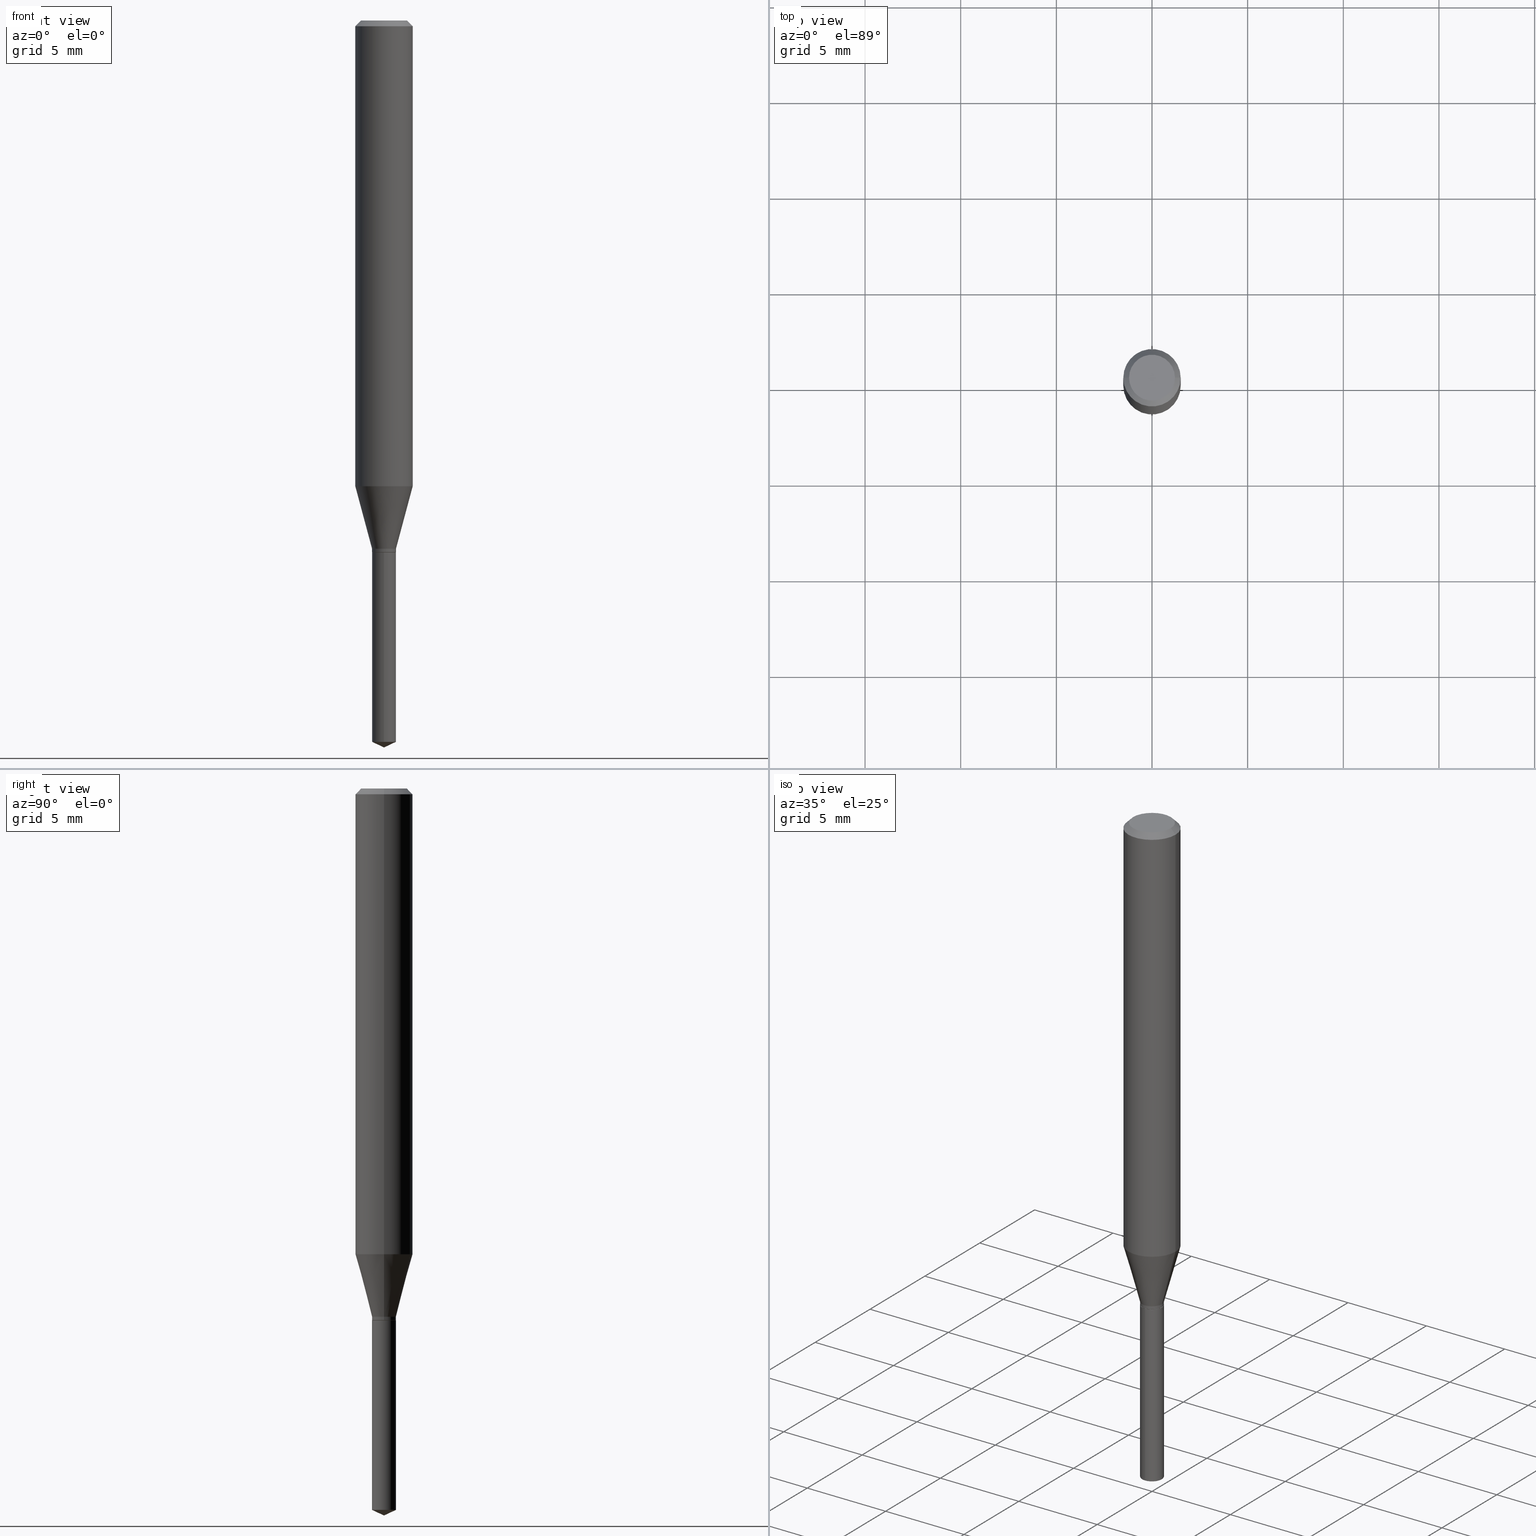
[diagram: canonical four-view strip — front | top / right | iso, engineering-drawing reading convention]
A machine part, canonical four-view strip (front | top / right | iso — engineering-drawing reading convention). The complete STEP part file that produces these views, byte-faithful:
ISO-10303-21;
HEADER;
FILE_DESCRIPTION (( 'STEP AP203' ),
    '1' );
FILE_NAME ('07510.STEP',
    '2024-04-23T22:17:07',
    ( '' ),
    ( '' ),
    'SwSTEP 2.0',
    'SolidWorks 2023',
    '' );
FILE_SCHEMA (( 'CONFIG_CONTROL_DESIGN' ));
ENDSEC;

DATA;
#1 = CARTESIAN_POINT ( 'NONE',  ( -1.717808818710458758E-16, -0.02460000000000518716, -1.484628831609386967 ) ) ;
#2 = LINE ( 'NONE', #439, #435 ) ;
#3 = VECTOR ( 'NONE', #385, 39.37007874015747433 ) ;
#4 = CIRCLE ( 'NONE', #204, 0.02460000000000000034 ) ;
#5 = PERSON_AND_ORGANIZATION_ROLE ( 'design_supplier' ) ;
#6 = CYLINDRICAL_SURFACE ( 'NONE', #12, 0.02460000000000000034 ) ;
#7 = EDGE_CURVE ( 'NONE', #144, #331, #61, .T. ) ;
#8 = CALENDAR_DATE ( 2024, 23, 4 ) ;
#9 = DIRECTION ( 'NONE',  ( -2.445468806185136597E-29, 3.491481338843145583E-15, 1.000000000000000000 ) ) ;
#10 = APPROVAL_STATUS ( 'not_yet_approved' ) ;
#11 = CARTESIAN_POINT ( 'NONE',  ( 3.630614045916086260E-29, -5.183553073825791416E-15, -1.484628831609386967 ) ) ;
#12 = AXIS2_PLACEMENT_3D ( 'NONE', #348, #190, #75 ) ;
#13 = APPROVAL_DATE_TIME ( #386, #246 ) ;
#14 = ORIENTED_EDGE ( 'NONE', *, *, #451, .T. ) ;
#15 = MECHANICAL_CONTEXT ( 'NONE', #389, 'mechanical' ) ;
#16 = CIRCLE ( 'NONE', #83, 0.02460000000000000034 ) ;
#17 = AXIS2_PLACEMENT_3D ( 'NONE', #478, #169, #313 ) ;
#18 = DIRECTION ( 'NONE',  ( -1.000000000000000000, 6.982962677686265922E-15, -4.876176775795935793E-29 ) ) ;
#19 = EDGE_CURVE ( 'NONE', #443, #109, #227, .T. ) ;
#20 = CARTESIAN_POINT ( 'NONE',  ( 1.747935129970209604E-16, 0.02459999999999618048, -1.094500000000000028 ) ) ;
#21 = ORIENTED_EDGE ( 'NONE', *, *, #77, .T. ) ;
#22 = CARTESIAN_POINT ( 'NONE',  ( 0.02409999999999999989, -3.989715725896061239E-15, -1.094499999999999806 ) ) ;
#23 = EDGE_LOOP ( 'NONE', ( #398, #63, #112, #485 ) ) ;
#24 = DIRECTION ( 'NONE',  ( 2.438088387897960049E-29, -3.491481338843145188E-15, -1.000000000000000000 ) ) ;
#25 = CC_DESIGN_DATE_AND_TIME_ASSIGNMENT ( #460, #76, ( #353 ) ) ;
#26 = ORIENTED_EDGE ( 'NONE', *, *, #297, .F. ) ;
#27 = ORIENTED_EDGE ( 'NONE', *, *, #244, .F. ) ;
#28 = FACE_OUTER_BOUND ( 'NONE', #392, .T. ) ;
#29 = ORIENTED_EDGE ( 'NONE', *, *, #56, .F. ) ;
#30 = PRODUCT_RELATED_PRODUCT_CATEGORY ( 'detail', '', ( #59 ) ) ;
#31 = DIRECTION ( 'NONE',  ( 1.000000000000000000, -6.982962677686265922E-15, 4.876176775795935793E-29 ) ) ;
#32 = DIRECTION ( 'NONE',  ( -2.445468806185136597E-29, 3.491481338843145583E-15, 1.000000000000000000 ) ) ;
#33 = LINE ( 'NONE', #337, #436 ) ;
#34 = DIRECTION ( 'NONE',  ( -0.7071067811865232589, 7.493145998870265808E-15, 0.7071067811865715536 ) ) ;
#35 = DIRECTION ( 'NONE',  ( -2.445468806185136597E-29, 3.491481338843145583E-15, 1.000000000000000000 ) ) ;
#36 = CARTESIAN_POINT ( 'NONE',  ( 0.05905000000000011628, -3.759036520477947429E-15, -0.9585308496792520616 ) ) ;
#37 = APPROVAL_ROLE ( '' ) ;
#38 = FACE_OUTER_BOUND ( 'NONE', #181, .T. ) ;
#39 = AXIS2_PLACEMENT_3D ( 'NONE', #138, #161, #288 ) ;
#40 = APPROVAL_ROLE ( '' ) ;
#41 = DIRECTION ( 'NONE',  ( 6.982962677686265922E-15, 1.000000000000000000, -3.491479321953280158E-15 ) ) ;
#42 = COORDINATED_UNIVERSAL_TIME_OFFSET ( 5, 0, .BEHIND. ) ;
#43 = DIRECTION ( 'NONE',  ( -6.982962677686265922E-15, -1.000000000000000000, 5.552536572488340164E-15 ) ) ;
#44 = ORIENTED_EDGE ( 'NONE', *, *, #168, .F. ) ;
#45 = CIRCLE ( 'NONE', #116, 0.02409999999999999989 ) ;
#46 = COORDINATED_UNIVERSAL_TIME_OFFSET ( 5, 0, .BEHIND. ) ;
#47 = AXIS2_PLACEMENT_3D ( 'NONE', #143, #489, #341 ) ;
#48 = ORIENTED_EDGE ( 'NONE', *, *, #19, .T. ) ;
#49 = LINE ( 'NONE', #22, #409 ) ;
#50 = ADVANCED_FACE ( 'NONE', ( #38 ), #159, .T. ) ;
#51 = VERTEX_POINT ( 'NONE', #236 ) ;
#52 = AXIS2_PLACEMENT_3D ( 'NONE', #404, #57, #209 ) ;
#53 = FACE_OUTER_BOUND ( 'NONE', #153, .T. ) ;
#54 = DIRECTION ( 'NONE',  ( 0.7071067811865232589, -2.468850131082003836E-15, 0.7071067811865715536 ) ) ;
#55 = ORIENTED_EDGE ( 'NONE', *, *, #185, .T. ) ;
#56 = EDGE_CURVE ( 'NONE', #109, #163, #434, .T. ) ;
#57 = DIRECTION ( 'NONE',  ( -2.445468806185136597E-29, 3.491481338843145583E-15, 1.000000000000000000 ) ) ;
#58 = VERTEX_POINT ( 'NONE', #461 ) ;
#59 = PRODUCT ( '07510', '07510', '', ( #15 ) ) ;
#60 = DIRECTION ( 'NONE',  ( 1.000000000000000000, -6.982962677686261189E-15, 0.000000000000000000 ) ) ;
#61 = CIRCLE ( 'NONE', #91, 0.04724000000000000421 ) ;
#62 = AXIS2_PLACEMENT_3D ( 'NONE', #488, #308, #121 ) ;
#63 = ORIENTED_EDGE ( 'NONE', *, *, #7, .F. ) ;
#64 = CARTESIAN_POINT ( 'NONE',  ( 3.658668015054778287E-29, -5.223602213574301462E-15, -1.496099999999999985 ) ) ;
#65 = ORIENTED_EDGE ( 'NONE', *, *, #7, .T. ) ;
#66 = CARTESIAN_POINT ( 'NONE',  ( 2.658469139203861920E-29, -3.795589363456383732E-15, -1.087099999999999955 ) ) ;
#67 = ORIENTED_EDGE ( 'NONE', *, *, #241, .F. ) ;
#68 = APPLICATION_CONTEXT ( 'configuration controlled 3d designs of mechanical parts and assemblies' ) ;
#69 = EDGE_CURVE ( 'NONE', #100, #171, #177, .T. ) ;
#70 = DIRECTION ( 'NONE',  ( 1.000000000000000000, -6.982962677686261977E-15, 0.000000000000000000 ) ) ;
#71 = VECTOR ( 'NONE', #410, 39.37007874015748143 ) ;
#72 = DIRECTION ( 'NONE',  ( 1.000000000000000000, -6.982962677686266711E-15, 0.000000000000000000 ) ) ;
#73 = APPROVAL_PERSON_ORGANIZATION ( #315, #246, #130 ) ;
#74 = CARTESIAN_POINT ( 'NONE',  ( -9.261968845786000133E-28, 1.322362114038720264E-13, 37.87397874015748300 ) ) ;
#75 = DIRECTION ( 'NONE',  ( -6.982962677686265922E-15, -1.000000000000000000, 5.552536572488340164E-15 ) ) ;
#76 = DATE_TIME_ROLE ( 'classification_date' ) ;
#77 = EDGE_CURVE ( 'NONE', #298, #412, #300, .T. ) ;
#78 = CARTESIAN_POINT ( 'NONE',  ( 8.265746106709734507E-48, -1.180129479067563789E-33, -3.380025165646692144E-19 ) ) ;
#79 = PERSON_AND_ORGANIZATION_ROLE ( 'design_owner' ) ;
#80 = EDGE_CURVE ( 'NONE', #450, #412, #16, .T. ) ;
#81 = ADVANCED_BREP_SHAPE_REPRESENTATION ( '07510', ( #131, #471, #267 ), #379 ) ;
#82 = EDGE_LOOP ( 'NONE', ( #318, #323, #14, #29 ) ) ;
#83 = AXIS2_PLACEMENT_3D ( 'NONE', #123, #32, #192 ) ;
#84 = VECTOR ( 'NONE', #472, 39.37007874015748143 ) ;
#85 = VECTOR ( 'NONE', #218, 39.37007874015748143 ) ;
#86 = DIRECTION ( 'NONE',  ( -2.445468806185136597E-29, 3.491481338843145583E-15, 1.000000000000000000 ) ) ;
#87 = ADVANCED_FACE ( 'NONE', ( #422 ), #6, .T. ) ;
#88 = PERSON_AND_ORGANIZATION ( #372, #164 ) ;
#89 = DIRECTION ( 'NONE',  ( -6.982962677686266711E-15, -1.000000000000000000, 3.520397390770451109E-15 ) ) ;
#90 = ORIENTED_EDGE ( 'NONE', *, *, #241, .T. ) ;
#91 = AXIS2_PLACEMENT_3D ( 'NONE', #78, #86, #232 ) ;
#92 = AXIS2_PLACEMENT_3D ( 'NONE', #66, #182, #104 ) ;
#93 = EDGE_CURVE ( 'NONE', #144, #100, #343, .T. ) ;
#94 = VERTEX_POINT ( 'NONE', #114 ) ;
#95 = FACE_OUTER_BOUND ( 'NONE', #477, .T. ) ;
#96 = EDGE_CURVE ( 'NONE', #331, #144, #155, .T. ) ;
#97 = CIRCLE ( 'NONE', #484, 0.02460000000000000034 ) ;
#98 = CARTESIAN_POINT ( 'NONE',  ( 2.658469139203861920E-29, -3.795589363456383732E-15, -1.087099999999999955 ) ) ;
#99 = CONICAL_SURFACE ( 'NONE', #259, 84.42940631927440620, 1.134464013796316229 ) ;
#100 = VERTEX_POINT ( 'NONE', #340 ) ;
#101 = ADVANCED_FACE ( 'NONE', ( #306 ), #464, .F. ) ;
#102 = FACE_OUTER_BOUND ( 'NONE', #23, .T. ) ;
#103 = ORIENTED_EDGE ( 'NONE', *, *, #335, .T. ) ;
#104 = DIRECTION ( 'NONE',  ( 1.000000000000000000, -6.982962677686261977E-15, 0.000000000000000000 ) ) ;
#105 = DESIGN_CONTEXT ( 'detailed design', #68, 'design' ) ;
#106 = ORIENTED_EDGE ( 'NONE', *, *, #451, .F. ) ;
#107 = LINE ( 'NONE', #330, #71 ) ;
#108 = LOCAL_TIME ( 18, 17, 7.000000000000000000, #122 ) ;
#109 = VERTEX_POINT ( 'NONE', #157 ) ;
#110 = DIRECTION ( 'NONE',  ( -2.445468806185136597E-29, 3.491481338843145583E-15, 1.000000000000000000 ) ) ;
#111 = EDGE_CURVE ( 'NONE', #163, #109, #312, .T. ) ;
#112 = ORIENTED_EDGE ( 'NONE', *, *, #93, .T. ) ;
#113 = CARTESIAN_POINT ( 'NONE',  ( 0.04724000000000000421, -3.852183633974369838E-16, -3.380025165621689721E-19 ) ) ;
#114 = CARTESIAN_POINT ( 'NONE',  ( 0.02460000000000000034, -3.967370245327465994E-15, -1.087099999999999955 ) ) ;
#115 = CARTESIAN_POINT ( 'NONE',  ( 2.675342873966538993E-29, -3.819680584694400481E-15, -1.093999999999999861 ) ) ;
#116 = AXIS2_PLACEMENT_3D ( 'NONE', #416, #9, #490 ) ;
#117 = LINE ( 'NONE', #268, #417 ) ;
#118 = CC_DESIGN_APPROVAL ( #210, ( #353 ) ) ;
#119 = CC_DESIGN_PERSON_AND_ORGANIZATION_ASSIGNMENT ( #271, #5, ( #459 ) ) ;
#120 = APPLICATION_PROTOCOL_DEFINITION ( 'international standard', 'config_control_design', 1994, #68 ) ;
#121 = DIRECTION ( 'NONE',  ( 1.000000000000000000, -6.982962677686266711E-15, 0.000000000000000000 ) ) ;
#122 = COORDINATED_UNIVERSAL_TIME_OFFSET ( 5, 0, .BEHIND. ) ;
#123 = CARTESIAN_POINT ( 'NONE',  ( 2.675342873966538993E-29, -3.819680584694400481E-15, -1.093999999999999861 ) ) ;
#124 = PERSON_AND_ORGANIZATION ( #372, #164 ) ;
#125 = DIRECTION ( 'NONE',  ( -2.445468806185136597E-29, 3.491481338843145583E-15, 1.000000000000000000 ) ) ;
#126 = AXIS2_PLACEMENT_3D ( 'NONE', #277, #381, #156 ) ;
#127 = AXIS2_PLACEMENT_3D ( 'NONE', #304, #299, #375 ) ;
#128 = PERSON_AND_ORGANIZATION_ROLE ( 'classification_officer' ) ;
#129 = FACE_OUTER_BOUND ( 'NONE', #333, .T. ) ;
#130 = APPROVAL_ROLE ( '' ) ;
#131 = MANIFOLD_SOLID_BREP ( 'Body-Move/Copy2[1]', #233 ) ;
#132 = AXIS2_PLACEMENT_3D ( 'NONE', #376, #196, #194 ) ;
#133 = EDGE_CURVE ( 'NONE', #298, #58, #45, .T. ) ;
#134 = CC_DESIGN_APPROVAL ( #235, ( #433 ) ) ;
#135 = CARTESIAN_POINT ( 'NONE',  ( 0.05904999999999999832, -4.535783407291118600E-16, -0.01181000000000007738 ) ) ;
#136 = CARTESIAN_POINT ( 'NONE',  ( -9.261968845786000133E-28, 1.322362114038720264E-13, 37.87397874015748300 ) ) ;
#137 = ORIENTED_EDGE ( 'NONE', *, *, #145, .T. ) ;
#138 = CARTESIAN_POINT ( 'NONE',  ( 0.000000000000000000, 0.000000000000000000, 0.000000000000000000 ) ) ;
#139 = ORIENTED_EDGE ( 'NONE', *, *, #133, .F. ) ;
#140 = EDGE_CURVE ( 'NONE', #331, #171, #462, .T. ) ;
#141 = LINE ( 'NONE', #175, #84 ) ;
#142 = ORIENTED_EDGE ( 'NONE', *, *, #145, .F. ) ;
#143 = CARTESIAN_POINT ( 'NONE',  ( 2.676565608369631794E-29, -3.821426325363822773E-15, -1.094499999999999806 ) ) ;
#144 = VERTEX_POINT ( 'NONE', #457 ) ;
#145 = EDGE_CURVE ( 'NONE', #273, #357, #117, .T. ) ;
#146 = CC_DESIGN_PERSON_AND_ORGANIZATION_ASSIGNMENT ( #200, #349, ( #433 ) ) ;
#147 = CARTESIAN_POINT ( 'NONE',  ( -0.02460000000000000034, -3.632841461078407384E-15, -1.093999999999999861 ) ) ;
#148 = AXIS2_PLACEMENT_3D ( 'NONE', #406, #332, #60 ) ;
#149 = VECTOR ( 'NONE', #296, 39.37007874015748143 ) ;
#150 = ORIENTED_EDGE ( 'NONE', *, *, #487, .T. ) ;
#151 = DIRECTION ( 'NONE',  ( 1.000000000000000000, -6.982962677686261977E-15, 0.000000000000000000 ) ) ;
#152 = VERTEX_POINT ( 'NONE', #383 ) ;
#153 = EDGE_LOOP ( 'NONE', ( #142, #438, #286 ) ) ;
#154 = LINE ( 'NONE', #191, #149 ) ;
#155 = CIRCLE ( 'NONE', #425, 0.04724000000000000421 ) ;
#156 = DIRECTION ( 'NONE',  ( -6.982962677686265922E-15, -1.000000000000000000, 5.552536572488340164E-15 ) ) ;
#157 = CARTESIAN_POINT ( 'NONE',  ( -0.05905000000000011628, -2.927117088894233016E-15, -0.9585308496792520616 ) ) ;
#158 = APPROVAL_DATE_TIME ( #202, #210 ) ;
#159 = CYLINDRICAL_SURFACE ( 'NONE', #126, 0.02460000000000000034 ) ;
#160 = PERSON_AND_ORGANIZATION ( #372, #164 ) ;
#161 = DIRECTION ( 'NONE',  ( -2.445468806185136597E-29, 3.491481338843145583E-15, 1.000000000000000000 ) ) ;
#162 = AXIS2_PLACEMENT_3D ( 'NONE', #238, #362, #430 ) ;
#163 = VERTEX_POINT ( 'NONE', #36 ) ;
#164 = ORGANIZATION ( 'UNSPECIFIED', 'UNSPECIFIED', '' ) ;
#165 =( CONVERSION_BASED_UNIT ( 'INCH', #237 ) LENGTH_UNIT ( ) NAMED_UNIT ( #170 ) );
#166 = DATE_TIME_ROLE ( 'creation_date' ) ;
#167 = CIRCLE ( 'NONE', #378, 0.05904999999999999832 ) ;
#168 = EDGE_CURVE ( 'NONE', #450, #94, #2, .T. ) ;
#169 = DIRECTION ( 'NONE',  ( -2.445470214571802116E-29, 3.491479321953280158E-15, 1.000000000000000000 ) ) ;
#170 = DIMENSIONAL_EXPONENTS ( 1.000000000000000000, 0.000000000000000000, 0.000000000000000000, 0.000000000000000000, 0.000000000000000000, 0.000000000000000000, 0.000000000000000000 ) ;
#171 = VERTEX_POINT ( 'NONE', #135 ) ;
#172 = CC_DESIGN_PERSON_AND_ORGANIZATION_ASSIGNMENT ( #88, #128, ( #353 ) ) ;
#173 = CARTESIAN_POINT ( 'NONE',  ( 2.676565608369631794E-29, -3.821426325363822773E-15, -1.094499999999999806 ) ) ;
#174 = ORIENTED_EDGE ( 'NONE', *, *, #388, .T. ) ;
#175 = CARTESIAN_POINT ( 'NONE',  ( 0.05905000000000006077, -4.123439461173744764E-16, 2.879382386107503023E-30 ) ) ;
#176 = ORIENTED_EDGE ( 'NONE', *, *, #437, .F. ) ;
#177 = CIRCLE ( 'NONE', #132, 0.05904999999999999832 ) ;
#178 = CONICAL_SURFACE ( 'NONE', #242, 0.02409999999999999989, 0.7853981633974141952 ) ;
#179 = CARTESIAN_POINT ( 'NONE',  ( 2.676565608369631794E-29, -3.821426325363822773E-15, -1.094499999999999806 ) ) ;
#180 = APPROVAL_PERSON_ORGANIZATION ( #269, #235, #37 ) ;
#181 = EDGE_LOOP ( 'NONE', ( #369, #408, #219, #365 ) ) ;
#182 = DIRECTION ( 'NONE',  ( -2.445468806185136597E-29, 3.491481338843145583E-15, 1.000000000000000000 ) ) ;
#183 = ORIENTED_EDGE ( 'NONE', *, *, #77, .F. ) ;
#184 = EDGE_CURVE ( 'NONE', #94, #443, #97, .T. ) ;
#185 = EDGE_CURVE ( 'NONE', #171, #100, #167, .T. ) ;
#186 = FACE_OUTER_BOUND ( 'NONE', #325, .T. ) ;
#187 = ORIENTED_EDGE ( 'NONE', *, *, #93, .F. ) ;
#188 = FACE_OUTER_BOUND ( 'NONE', #205, .T. ) ;
#189 = VECTOR ( 'NONE', #424, 39.37007874015748143 ) ;
#190 = DIRECTION ( 'NONE',  ( -2.445470214571802116E-29, 3.491479321953280158E-15, 1.000000000000000000 ) ) ;
#191 = CARTESIAN_POINT ( 'NONE',  ( -0.02460000000000000034, 1.747935129969846481E-16, -1.210058032202706883E-30 ) ) ;
#192 = DIRECTION ( 'NONE',  ( 1.000000000000000000, -6.982962677686261977E-15, 0.000000000000000000 ) ) ;
#193 = DIRECTION ( 'NONE',  ( -2.438088387897960049E-29, 3.491481338843145188E-15, 1.000000000000000000 ) ) ;
#194 = DIRECTION ( 'NONE',  ( 1.000000000000000000, -6.982962677686266711E-15, 0.000000000000000000 ) ) ;
#195 = APPROVAL_DATE_TIME ( #281, #235 ) ;
#196 = DIRECTION ( 'NONE',  ( -2.445468806185136597E-29, 3.491481338843145583E-15, 1.000000000000000000 ) ) ;
#197 = DATE_AND_TIME ( #393, #108 ) ;
#198 = CARTESIAN_POINT ( 'NONE',  ( -0.02460000000000000034, -3.620795850459399404E-15, -1.087099999999999955 ) ) ;
#199 = ADVANCED_FACE ( 'NONE', ( #53 ), #352, .T. ) ;
#200 = PERSON_AND_ORGANIZATION ( #372, #164 ) ;
#201 = DIRECTION ( 'NONE',  ( -2.445468806185136597E-29, 3.491481338843145583E-15, 1.000000000000000000 ) ) ;
#202 = DATE_AND_TIME ( #8, #226 ) ;
#203 = EDGE_CURVE ( 'NONE', #163, #171, #141, .T. ) ;
#204 = AXIS2_PLACEMENT_3D ( 'NONE', #11, #440, #402 ) ;
#205 = EDGE_LOOP ( 'NONE', ( #214, #250, #55, #187 ) ) ;
#206 = ADVANCED_FACE ( 'NONE', ( #102 ), #217, .T. ) ;
#207 = VERTEX_POINT ( 'NONE', #20 ) ;
#208 = ORIENTED_EDGE ( 'NONE', *, *, #421, .T. ) ;
#209 = DIRECTION ( 'NONE',  ( 1.000000000000000000, -6.982962677686266711E-15, 4.876176775795935793E-29 ) ) ;
#210 = APPROVAL ( #391, 'UNSPECIFIED' ) ;
#211 = VECTOR ( 'NONE', #320, 39.37007874015748143 ) ;
#212 = DIRECTION ( 'NONE',  ( -2.445470214571802116E-29, 3.491479321953280158E-15, 1.000000000000000000 ) ) ;
#213 = CARTESIAN_POINT ( 'NONE',  ( 0.000000000000000000, 0.000000000000000000, 0.000000000000000000 ) ) ;
#214 = ORIENTED_EDGE ( 'NONE', *, *, #96, .F. ) ;
#215 = FACE_OUTER_BOUND ( 'NONE', #474, .T. ) ;
#216 = ORIENTED_EDGE ( 'NONE', *, *, #335, .F. ) ;
#217 = CONICAL_SURFACE ( 'NONE', #162, 0.05904999999999999832, 0.7853981633974449483 ) ;
#218 = DIRECTION ( 'NONE',  ( 6.439704144417030353E-15, 0.9063077870366522681, 0.4226182617406943898 ) ) ;
#219 = ORIENTED_EDGE ( 'NONE', *, *, #342, .T. ) ;
#220 = DIRECTION ( 'NONE',  ( -2.445470214571802396E-29, 3.491479321953280158E-15, 1.000000000000000000 ) ) ;
#221 = ORIENTED_EDGE ( 'NONE', *, *, #487, .F. ) ;
#222 = FACE_OUTER_BOUND ( 'NONE', #291, .T. ) ;
#223 = ORIENTED_EDGE ( 'NONE', *, *, #56, .T. ) ;
#224 = CARTESIAN_POINT ( 'NONE',  ( 2.658469139203861920E-29, -3.795589363456383732E-15, -1.087099999999999955 ) ) ;
#225 = AXIS2_PLACEMENT_3D ( 'NONE', #136, #212, #89 ) ;
#226 = LOCAL_TIME ( 18, 17, 7.000000000000000000, #432 ) ;
#227 = LINE ( 'NONE', #198, #3 ) ;
#228 = DIRECTION ( 'NONE',  ( -6.982962677686266711E-15, -1.000000000000000000, 3.520397390770451109E-15 ) ) ;
#229 = EDGE_CURVE ( 'NONE', #357, #51, #4, .T. ) ;
#230 = DIRECTION ( 'NONE',  ( -6.328713451373374112E-15, -0.9063077870366492705, 0.4226182617407007180 ) ) ;
#231 =( NAMED_UNIT ( * ) PLANE_ANGLE_UNIT ( ) SI_UNIT ( $, .RADIAN. ) );
#232 = DIRECTION ( 'NONE',  ( 1.000000000000000000, -6.982962677686266711E-15, 4.876185090822587894E-29 ) ) ;
#233 = CLOSED_SHELL ( 'NONE', ( #87, #199, #463, #50, #101 ) ) ;
#234 = AXIS2_PLACEMENT_3D ( 'NONE', #213, #245, #350 ) ;
#235 = APPROVAL ( #429, 'UNSPECIFIED' ) ;
#236 = CARTESIAN_POINT ( 'NONE',  ( 1.747935129970209604E-16, 0.02459999999999482739, -1.484628831609386967 ) ) ;
#237 = LENGTH_MEASURE_WITH_UNIT ( LENGTH_MEASURE( 0.02539999999999999897 ), #368 );
#238 = CARTESIAN_POINT ( 'NONE',  ( 2.888098660104665518E-31, -4.123439461173782112E-17, -0.01181000000000007738 ) ) ;
#239 = CALENDAR_DATE ( 2024, 23, 4 ) ;
#240 = ORIENTED_EDGE ( 'NONE', *, *, #185, .F. ) ;
#241 = EDGE_CURVE ( 'NONE', #58, #450, #49, .T. ) ;
#242 = AXIS2_PLACEMENT_3D ( 'NONE', #486, #110, #293 ) ;
#243 = CC_DESIGN_APPROVAL ( #246, ( #459 ) ) ;
#244 = EDGE_CURVE ( 'NONE', #109, #100, #283, .T. ) ;
#245 = DIRECTION ( 'NONE',  ( -2.445468806185136597E-29, 3.491481338843145583E-15, 1.000000000000000000 ) ) ;
#246 = APPROVAL ( #10, 'UNSPECIFIED' ) ;
#247 = DIRECTION ( 'NONE',  ( -2.445468806185136877E-29, 3.491481338843145188E-15, 1.000000000000000000 ) ) ;
#248 = CIRCLE ( 'NONE', #17, 0.02460000000000000034 ) ;
#249 = DIRECTION ( 'NONE',  ( -2.445468806185136597E-29, 3.491481338843145583E-15, 1.000000000000000000 ) ) ;
#250 = ORIENTED_EDGE ( 'NONE', *, *, #140, .T. ) ;
#251 = CYLINDRICAL_SURFACE ( 'NONE', #52, 0.05905000000000006077 ) ;
#252 = ORIENTED_EDGE ( 'NONE', *, *, #111, .F. ) ;
#253 = CARTESIAN_POINT ( 'NONE',  ( 2.658469139203861920E-29, -3.795589363456383732E-15, -1.087099999999999955 ) ) ;
#254 = ADVANCED_FACE ( 'NONE', ( #95 ), #399, .T. ) ;
#255 = ORIENTED_EDGE ( 'NONE', *, *, #244, .T. ) ;
#256 = AXIS2_PLACEMENT_3D ( 'NONE', #419, #270, #41 ) ;
#257 = AXIS2_PLACEMENT_3D ( 'NONE', #456, #453, #413 ) ;
#258 = LINE ( 'NONE', #64, #85 ) ;
#259 = AXIS2_PLACEMENT_3D ( 'NONE', #74, #371, #228 ) ;
#260 = EDGE_CURVE ( 'NONE', #207, #152, #345, .T. ) ;
#261 = EDGE_LOOP ( 'NONE', ( #103, #21, #321, #67 ) ) ;
#262 = CARTESIAN_POINT ( 'NONE',  ( -0.02460000000000000034, -3.632841461078407384E-15, -1.087099999999999955 ) ) ;
#263 = EDGE_LOOP ( 'NONE', ( #150, #452 ) ) ;
#264 = DIRECTION ( 'NONE',  ( -2.445468806185136597E-29, 3.491481338843145583E-15, 1.000000000000000000 ) ) ;
#265 = CARTESIAN_POINT ( 'NONE',  ( 8.265746106709734507E-48, -1.180129479067563789E-33, -3.380025165646692144E-19 ) ) ;
#266 = CARTESIAN_POINT ( 'NONE',  ( 0.02460000000000000034, -3.967370245327465994E-15, -1.087099999999999955 ) ) ;
#267 = AXIS2_PLACEMENT_3D ( 'NONE', #351, #426, #355 ) ;
#268 = CARTESIAN_POINT ( 'NONE',  ( 3.658664905062460986E-29, -5.223606628546217219E-15, -1.496099999999999985 ) ) ;
#269 = PERSON_AND_ORGANIZATION ( #372, #164 ) ;
#270 = DIRECTION ( 'NONE',  ( 2.445470214571801836E-29, -3.491479321953280158E-15, -1.000000000000000000 ) ) ;
#271 = PERSON_AND_ORGANIZATION ( #372, #164 ) ;
#272 = ADVANCED_FACE ( 'NONE', ( #446 ), #475, .T. ) ;
#273 = VERTEX_POINT ( 'NONE', #397 ) ;
#274 = AXIS2_PLACEMENT_3D ( 'NONE', #428, #125, #72 ) ;
#275 = CONICAL_SURFACE ( 'NONE', #469, 0.02409999999999999989, 0.7853981633974141952 ) ;
#276 = ADVANCED_FACE ( 'NONE', ( #444 ), #251, .T. ) ;
#277 = CARTESIAN_POINT ( 'NONE',  ( 2.676565608369631794E-29, -3.821426325363822773E-15, -1.094499999999999806 ) ) ;
#278 = APPLICATION_PROTOCOL_DEFINITION ( 'international standard', 'config_control_design', 1994, #389 ) ;
#279 = CYLINDRICAL_SURFACE ( 'NONE', #257, 0.02460000000000000034 ) ;
#280 = ORIENTED_EDGE ( 'NONE', *, *, #203, .T. ) ;
#281 = DATE_AND_TIME ( #307, #326 ) ;
#282 = CLOSED_SHELL ( 'NONE', ( #292, #384, #254, #329, #272, #303, #411, #276, #206, #285, #468, #374 ) ) ;
#283 = LINE ( 'NONE', #290, #211 ) ;
#284 = CARTESIAN_POINT ( 'NONE',  ( 2.888098660104665518E-31, -4.123439461173782112E-17, -0.01181000000000007738 ) ) ;
#285 = ADVANCED_FACE ( 'NONE', ( #215 ), #366, .F. ) ;
#286 = ORIENTED_EDGE ( 'NONE', *, *, #229, .F. ) ;
#287 = AXIS2_PLACEMENT_3D ( 'NONE', #382, #193, #31 ) ;
#288 = DIRECTION ( 'NONE',  ( 1.000000000000000000, -6.982962677686266711E-15, 4.876176775795935793E-29 ) ) ;
#289 = ORIENTED_EDGE ( 'NONE', *, *, #184, .T. ) ;
#290 = CARTESIAN_POINT ( 'NONE',  ( -0.05905000000000006077, 4.195754854663395916E-16, -2.904631170795524694E-30 ) ) ;
#291 = EDGE_LOOP ( 'NONE', ( #289, #48, #252, #106 ) ) ;
#292 = ADVANCED_FACE ( 'NONE', ( #359 ), #275, .T. ) ;
#293 = DIRECTION ( 'NONE',  ( 1.000000000000000000, -6.982962677686261189E-15, 0.000000000000000000 ) ) ;
#294 = ORIENTED_EDGE ( 'NONE', *, *, #80, .T. ) ;
#295 = APPROVAL_PERSON_ORGANIZATION ( #347, #210, #40 ) ;
#296 = DIRECTION ( 'NONE',  ( -2.445468806185136877E-29, 3.491481338843145188E-15, 1.000000000000000000 ) ) ;
#297 = EDGE_CURVE ( 'NONE', #51, #357, #248, .T. ) ;
#298 = VERTEX_POINT ( 'NONE', #467 ) ;
#299 = DIRECTION ( 'NONE',  ( 2.445468806185136597E-29, -3.491481338843145583E-15, -1.000000000000000000 ) ) ;
#300 = LINE ( 'NONE', #346, #407 ) ;
#301 = FACE_OUTER_BOUND ( 'NONE', #482, .T. ) ;
#302 = CARTESIAN_POINT ( 'NONE',  ( 0.05904999999999999832, -4.463468013801467941E-16, -0.01181000000000007738 ) ) ;
#303 = ADVANCED_FACE ( 'NONE', ( #129 ), #279, .T. ) ;
#304 = CARTESIAN_POINT ( 'NONE',  ( 2.888098660104665518E-31, -4.123439461173782112E-17, -0.01181000000000007738 ) ) ;
#305 = CONICAL_SURFACE ( 'NONE', #127, 0.05904999999999999832, 0.7853981633974449483 ) ;
#306 = FACE_OUTER_BOUND ( 'NONE', #263, .T. ) ;
#307 = CALENDAR_DATE ( 2024, 23, 4 ) ;
#308 = DIRECTION ( 'NONE',  ( -2.445468806185136597E-29, 3.491481338843145583E-15, 1.000000000000000000 ) ) ;
#309 =( NAMED_UNIT ( * ) SI_UNIT ( $, .STERADIAN. ) SOLID_ANGLE_UNIT ( ) );
#310 = DIRECTION ( 'NONE',  ( 1.000000000000000000, -6.982962677686266711E-15, 4.876185090822587894E-29 ) ) ;
#311 = PERSON_AND_ORGANIZATION_ROLE ( 'creator' ) ;
#312 = CIRCLE ( 'NONE', #62, 0.05905000000000011628 ) ;
#313 = DIRECTION ( 'NONE',  ( -6.982962677686265922E-15, -1.000000000000000000, 0.000000000000000000 ) ) ;
#314 = EDGE_LOOP ( 'NONE', ( #27, #223, #280, #445 ) ) ;
#315 = PERSON_AND_ORGANIZATION ( #372, #164 ) ;
#316 = ORIENTED_EDGE ( 'NONE', *, *, #96, .T. ) ;
#317 = VECTOR ( 'NONE', #418, 39.37007874015747433 ) ;
#318 = ORIENTED_EDGE ( 'NONE', *, *, #19, .F. ) ;
#319 = EDGE_CURVE ( 'NONE', #443, #94, #449, .T. ) ;
#320 = DIRECTION ( 'NONE',  ( -2.445468806185136877E-29, 3.491481338843145188E-15, 1.000000000000000000 ) ) ;
#321 = ORIENTED_EDGE ( 'NONE', *, *, #80, .F. ) ;
#322 = DIRECTION ( 'NONE',  ( 1.000000000000000000, -6.982962677686266711E-15, 0.000000000000000000 ) ) ;
#323 = ORIENTED_EDGE ( 'NONE', *, *, #319, .T. ) ;
#324 = DIRECTION ( 'NONE',  ( -2.445470214571802116E-29, 3.491479321953280158E-15, 1.000000000000000000 ) ) ;
#325 = EDGE_LOOP ( 'NONE', ( #216, #139 ) ) ;
#326 = LOCAL_TIME ( 18, 17, 7.000000000000000000, #42 ) ;
#327 = DIRECTION ( 'NONE',  ( 1.000000000000000000, -6.982962677686261189E-15, 0.000000000000000000 ) ) ;
#328 = EDGE_LOOP ( 'NONE', ( #294, #431, #367, #44 ) ) ;
#329 = ADVANCED_FACE ( 'NONE', ( #222 ), #458, .T. ) ;
#330 = CARTESIAN_POINT ( 'NONE',  ( -1.717808818710553915E-16, -0.02460000000000382020, -1.094499999999999806 ) ) ;
#331 = VERTEX_POINT ( 'NONE', #113 ) ;
#332 = DIRECTION ( 'NONE',  ( -2.445468806185136597E-29, 3.491481338843145583E-15, 1.000000000000000000 ) ) ;
#333 = EDGE_LOOP ( 'NONE', ( #176, #174, #395, #354 ) ) ;
#334 = CIRCLE ( 'NONE', #148, 0.02409999999999999989 ) ;
#335 = EDGE_CURVE ( 'NONE', #58, #298, #334, .T. ) ;
#336 = AXIS2_PLACEMENT_3D ( 'NONE', #224, #380, #483 ) ;
#337 = CARTESIAN_POINT ( 'NONE',  ( 1.747935129970113708E-16, 0.02459999999999618048, -1.094500000000000028 ) ) ;
#338 = DIRECTION ( 'NONE',  ( -0.7071067811865451302, 2.468850131082231817E-15, -0.7071067811865499042 ) ) ;
#339 = LINE ( 'NONE', #266, #317 ) ;
#340 = CARTESIAN_POINT ( 'NONE',  ( -0.05904999999999999832, -1.274387999019814837E-15, -0.01181000000000007738 ) ) ;
#341 = DIRECTION ( 'NONE',  ( -6.982962677686265922E-15, -1.000000000000000000, 5.552536572488340164E-15 ) ) ;
#342 = EDGE_CURVE ( 'NONE', #357, #152, #107, .T. ) ;
#343 = LINE ( 'NONE', #455, #377 ) ;
#344 = CALENDAR_DATE ( 2024, 23, 4 ) ;
#345 = CIRCLE ( 'NONE', #476, 0.02460000000000000034 ) ;
#346 = CARTESIAN_POINT ( 'NONE',  ( -0.02409999999999999989, -3.650185526045638555E-15, -1.094499999999999806 ) ) ;
#347 = PERSON_AND_ORGANIZATION ( #372, #164 ) ;
#348 = CARTESIAN_POINT ( 'NONE',  ( 2.676565608369631794E-29, -3.821426325363822773E-15, -1.094499999999999806 ) ) ;
#349 = PERSON_AND_ORGANIZATION_ROLE ( 'creator' ) ;
#350 = DIRECTION ( 'NONE',  ( 1.000000000000000000, -6.982962677686266711E-15, 4.876176775795935793E-29 ) ) ;
#351 = CARTESIAN_POINT ( 'NONE',  ( 0.000000000000000000, 0.000000000000000000, 0.000000000000000000 ) ) ;
#352 = CONICAL_SURFACE ( 'NONE', #225, 84.42940631927440620, 1.134464013796316229 ) ;
#353 = SECURITY_CLASSIFICATION ( '', '', #465 ) ;
#354 = ORIENTED_EDGE ( 'NONE', *, *, #319, .F. ) ;
#355 = DIRECTION ( 'NONE',  ( 1.000000000000000000, 0.000000000000000000, 0.000000000000000000 ) ) ;
#356 = CC_DESIGN_PERSON_AND_ORGANIZATION_ASSIGNMENT ( #160, #311, ( #459 ) ) ;
#357 = VERTEX_POINT ( 'NONE', #1 ) ;
#358 = UNCERTAINTY_MEASURE_WITH_UNIT (LENGTH_MEASURE( 1.000000000000000082E-05 ), #165, 'distance_accuracy_value', 'NONE');
#359 = FACE_OUTER_BOUND ( 'NONE', #261, .T. ) ;
#360 = AXIS2_PLACEMENT_3D ( 'NONE', #115, #264, #151 ) ;
#361 = CONICAL_SURFACE ( 'NONE', #336, 0.02460000000000000034, 0.2617993877991500740 ) ;
#362 = DIRECTION ( 'NONE',  ( 2.445468806185136597E-29, -3.491481338843145583E-15, -1.000000000000000000 ) ) ;
#363 = SHAPE_DEFINITION_REPRESENTATION ( #370, #81 ) ;
#364 = DIRECTION ( 'NONE',  ( 1.000000000000000000, -6.982962677686261977E-15, 0.000000000000000000 ) ) ;
#365 = ORIENTED_EDGE ( 'NONE', *, *, #260, .F. ) ;
#366 = PLANE ( 'NONE',  #441 ) ;
#367 = ORIENTED_EDGE ( 'NONE', *, *, #184, .F. ) ;
#368 =( LENGTH_UNIT ( ) NAMED_UNIT ( * ) SI_UNIT ( $, .METRE. ) );
#369 = ORIENTED_EDGE ( 'NONE', *, *, #421, .F. ) ;
#370 = PRODUCT_DEFINITION_SHAPE ( 'NONE', 'NONE',  #433 ) ;
#371 = DIRECTION ( 'NONE',  ( -2.445470214571802116E-29, 3.491479321953280158E-15, 1.000000000000000000 ) ) ;
#372 = PERSON ( 'UNSPECIFIED', 'UNSPECIFIED', 'UNSPECIFIED', ('UNSPECIFIED'), ('UNSPECIFIED'), ('UNSPECIFIED') ) ;
#373 = ORIENTED_EDGE ( 'NONE', *, *, #229, .T. ) ;
#374 = ADVANCED_FACE ( 'NONE', ( #301 ), #178, .T. ) ;
#375 = DIRECTION ( 'NONE',  ( -1.000000000000000000, 6.982962677686266711E-15, 0.000000000000000000 ) ) ;
#376 = CARTESIAN_POINT ( 'NONE',  ( 2.888098660104665518E-31, -4.123439461173782112E-17, -0.01181000000000007738 ) ) ;
#377 = VECTOR ( 'NONE', #338, 39.37007874015748143 ) ;
#378 = AXIS2_PLACEMENT_3D ( 'NONE', #284, #473, #322 ) ;
#379 =( GEOMETRIC_REPRESENTATION_CONTEXT ( 3 ) GLOBAL_UNCERTAINTY_ASSIGNED_CONTEXT ( ( #358 ) ) GLOBAL_UNIT_ASSIGNED_CONTEXT ( ( #165, #231, #309 ) ) REPRESENTATION_CONTEXT ( 'NONE', 'WORKASPACE' ) );
#380 = DIRECTION ( 'NONE',  ( -2.445468806185136597E-29, 3.491481338843145583E-15, 1.000000000000000000 ) ) ;
#381 = DIRECTION ( 'NONE',  ( -2.445470214571802116E-29, 3.491479321953280158E-15, 1.000000000000000000 ) ) ;
#382 = CARTESIAN_POINT ( 'NONE',  ( 2.676565608369631794E-29, -3.821426325363822773E-15, -1.094499999999999806 ) ) ;
#383 = CARTESIAN_POINT ( 'NONE',  ( -1.717808818710553915E-16, -0.02460000000000382020, -1.094499999999999806 ) ) ;
#384 = ADVANCED_FACE ( 'NONE', ( #188 ), #305, .T. ) ;
#385 = DIRECTION ( 'NONE',  ( -0.2588190451025213501, 5.211531920934551042E-15, 0.9659258262890682012 ) ) ;
#386 = DATE_AND_TIME ( #344, #427 ) ;
#387 = DIRECTION ( 'NONE',  ( -2.445468806185136597E-29, 3.491481338843145583E-15, 1.000000000000000000 ) ) ;
#388 = EDGE_CURVE ( 'NONE', #412, #450, #400, .T. ) ;
#389 = APPLICATION_CONTEXT ( 'configuration controlled 3d designs of mechanical parts and assemblies' ) ;
#390 = CARTESIAN_POINT ( 'NONE',  ( 4.132873053354867254E-48, -5.900647395337818946E-34, -1.690012582823346072E-19 ) ) ;
#391 = APPROVAL_STATUS ( 'not_yet_approved' ) ;
#392 = EDGE_LOOP ( 'NONE', ( #396, #137, #26 ) ) ;
#393 = CALENDAR_DATE ( 2024, 23, 4 ) ;
#394 = AXIS2_PLACEMENT_3D ( 'NONE', #253, #35, #70 ) ;
#395 = ORIENTED_EDGE ( 'NONE', *, *, #168, .T. ) ;
#396 = ORIENTED_EDGE ( 'NONE', *, *, #454, .F. ) ;
#397 = CARTESIAN_POINT ( 'NONE',  ( 3.658667988020872822E-29, -5.223602213574301462E-15, -1.496099999999999985 ) ) ;
#398 = ORIENTED_EDGE ( 'NONE', *, *, #140, .F. ) ;
#399 = CYLINDRICAL_SURFACE ( 'NONE', #234, 0.05905000000000006077 ) ;
#400 = CIRCLE ( 'NONE', #360, 0.02460000000000000034 ) ;
#401 = CIRCLE ( 'NONE', #47, 0.02460000000000000034 ) ;
#402 = DIRECTION ( 'NONE',  ( -6.982962677686265922E-15, -1.000000000000000000, 0.000000000000000000 ) ) ;
#403 = ORIENTED_EDGE ( 'NONE', *, *, #388, .F. ) ;
#404 = CARTESIAN_POINT ( 'NONE',  ( 0.000000000000000000, 0.000000000000000000, 0.000000000000000000 ) ) ;
#405 = ORIENTED_EDGE ( 'NONE', *, *, #111, .T. ) ;
#406 = CARTESIAN_POINT ( 'NONE',  ( 2.676565608369631794E-29, -3.821426325363822773E-15, -1.094499999999999806 ) ) ;
#407 = VECTOR ( 'NONE', #34, 39.37007874015748854 ) ;
#408 = ORIENTED_EDGE ( 'NONE', *, *, #297, .T. ) ;
#409 = VECTOR ( 'NONE', #54, 39.37007874015748854 ) ;
#410 = DIRECTION ( 'NONE',  ( -2.445470214571802396E-29, 3.491479321953280158E-15, 1.000000000000000000 ) ) ;
#411 = ADVANCED_FACE ( 'NONE', ( #415 ), #361, .T. ) ;
#412 = VERTEX_POINT ( 'NONE', #147 ) ;
#413 = DIRECTION ( 'NONE',  ( 1.000000000000000000, -6.982962677686266711E-15, 4.876176775795935793E-29 ) ) ;
#414 = ORIENTED_EDGE ( 'NONE', *, *, #133, .T. ) ;
#415 = FACE_OUTER_BOUND ( 'NONE', #82, .T. ) ;
#416 = CARTESIAN_POINT ( 'NONE',  ( 2.676565608369631794E-29, -3.821426325363822773E-15, -1.094499999999999806 ) ) ;
#417 = VECTOR ( 'NONE', #230, 39.37007874015748854 ) ;
#418 = DIRECTION ( 'NONE',  ( 0.2588190451025213501, 1.565188264969621968E-15, 0.9659258262890682012 ) ) ;
#419 = CARTESIAN_POINT ( 'NONE',  ( 2.676565608369631794E-29, -3.821426325363822773E-15, -1.094499999999999806 ) ) ;
#420 = COORDINATED_UNIVERSAL_TIME_OFFSET ( 5, 0, .BEHIND. ) ;
#421 = EDGE_CURVE ( 'NONE', #51, #207, #33, .T. ) ;
#422 = FACE_OUTER_BOUND ( 'NONE', #479, .T. ) ;
#423 = CC_DESIGN_DATE_AND_TIME_ASSIGNMENT ( #197, #166, ( #433 ) ) ;
#424 = DIRECTION ( 'NONE',  ( 0.7071067811865451302, -7.319954787623248157E-15, -0.7071067811865499042 ) ) ;
#425 = AXIS2_PLACEMENT_3D ( 'NONE', #265, #387, #310 ) ;
#426 = DIRECTION ( 'NONE',  ( 0.000000000000000000, 0.000000000000000000, 1.000000000000000000 ) ) ;
#427 = LOCAL_TIME ( 18, 17, 7.000000000000000000, #46 ) ;
#428 = CARTESIAN_POINT ( 'NONE',  ( 2.344057292656745100E-29, -3.346692574360572903E-15, -0.9585308496792520616 ) ) ;
#429 = APPROVAL_STATUS ( 'not_yet_approved' ) ;
#430 = DIRECTION ( 'NONE',  ( -1.000000000000000000, 6.982962677686266711E-15, 0.000000000000000000 ) ) ;
#431 = ORIENTED_EDGE ( 'NONE', *, *, #437, .T. ) ;
#432 = COORDINATED_UNIVERSAL_TIME_OFFSET ( 5, 0, .BEHIND. ) ;
#433 = PRODUCT_DEFINITION ( 'UNKNOWN', '', #459, #105 ) ;
#434 = CIRCLE ( 'NONE', #274, 0.05905000000000011628 ) ;
#435 = VECTOR ( 'NONE', #247, 39.37007874015748143 ) ;
#436 = VECTOR ( 'NONE', #220, 39.37007874015748143 ) ;
#437 = EDGE_CURVE ( 'NONE', #412, #443, #154, .T. ) ;
#438 = ORIENTED_EDGE ( 'NONE', *, *, #454, .T. ) ;
#439 = CARTESIAN_POINT ( 'NONE',  ( 0.02460000000000000034, -1.717808818710821634E-16, 1.199539486845800236E-30 ) ) ;
#440 = DIRECTION ( 'NONE',  ( -2.445470214571802116E-29, 3.491479321953280158E-15, 1.000000000000000000 ) ) ;
#441 = AXIS2_PLACEMENT_3D ( 'NONE', #390, #24, #18 ) ;
#442 = LOCAL_TIME ( 18, 17, 7.000000000000000000, #420 ) ;
#443 = VERTEX_POINT ( 'NONE', #262 ) ;
#444 = FACE_OUTER_BOUND ( 'NONE', #314, .T. ) ;
#445 = ORIENTED_EDGE ( 'NONE', *, *, #69, .F. ) ;
#446 = FACE_OUTER_BOUND ( 'NONE', #328, .T. ) ;
#447 = ORIENTED_EDGE ( 'NONE', *, *, #203, .F. ) ;
#448 = CARTESIAN_POINT ( 'NONE',  ( 0.02460000000000000034, -3.991461466565482743E-15, -1.093999999999999861 ) ) ;
#449 = CIRCLE ( 'NONE', #394, 0.02460000000000000034 ) ;
#450 = VERTEX_POINT ( 'NONE', #448 ) ;
#451 = EDGE_CURVE ( 'NONE', #94, #163, #339, .T. ) ;
#452 = ORIENTED_EDGE ( 'NONE', *, *, #260, .T. ) ;
#453 = DIRECTION ( 'NONE',  ( -2.445468806185136597E-29, 3.491481338843145583E-15, 1.000000000000000000 ) ) ;
#454 = EDGE_CURVE ( 'NONE', #273, #51, #258, .T. ) ;
#455 = CARTESIAN_POINT ( 'NONE',  ( -0.05904999999999999832, 3.711095515056362054E-16, -0.01181000000000007738 ) ) ;
#456 = CARTESIAN_POINT ( 'NONE',  ( 0.000000000000000000, 0.000000000000000000, 0.000000000000000000 ) ) ;
#457 = CARTESIAN_POINT ( 'NONE',  ( -0.04724000000000000421, 3.504923541997677355E-16, -3.380025165670481712E-19 ) ) ;
#458 = CONICAL_SURFACE ( 'NONE', #92, 0.02460000000000000034, 0.2617993877991500740 ) ;
#459 = PRODUCT_DEFINITION_FORMATION_WITH_SPECIFIED_SOURCE ( 'ANY', '', #59, .NOT_KNOWN. ) ;
#460 = DATE_AND_TIME ( #239, #442 ) ;
#461 = CARTESIAN_POINT ( 'NONE',  ( 0.02409999999999999989, -3.989715725896061239E-15, -1.094499999999999806 ) ) ;
#462 = LINE ( 'NONE', #302, #189 ) ;
#463 = ADVANCED_FACE ( 'NONE', ( #28 ), #99, .T. ) ;
#464 = PLANE ( 'NONE',  #256 ) ;
#465 = SECURITY_CLASSIFICATION_LEVEL ( 'unclassified' ) ;
#466 = CC_DESIGN_SECURITY_CLASSIFICATION ( #353, ( #459 ) ) ;
#467 = CARTESIAN_POINT ( 'NONE',  ( -0.02409999999999999989, -3.647536298871527354E-15, -1.094499999999999806 ) ) ;
#468 = ADVANCED_FACE ( 'NONE', ( #186 ), #481, .F. ) ;
#469 = AXIS2_PLACEMENT_3D ( 'NONE', #179, #201, #327 ) ;
#470 = ORIENTED_EDGE ( 'NONE', *, *, #342, .F. ) ;
#471 = MANIFOLD_SOLID_BREP ( 'Body-Move/Copy2[2]', #282 ) ;
#472 = DIRECTION ( 'NONE',  ( -2.445468806185136877E-29, 3.491481338843145188E-15, 1.000000000000000000 ) ) ;
#473 = DIRECTION ( 'NONE',  ( -2.445468806185136597E-29, 3.491481338843145583E-15, 1.000000000000000000 ) ) ;
#474 = EDGE_LOOP ( 'NONE', ( #65, #316 ) ) ;
#475 = CYLINDRICAL_SURFACE ( 'NONE', #39, 0.02460000000000000034 ) ;
#476 = AXIS2_PLACEMENT_3D ( 'NONE', #173, #324, #43 ) ;
#477 = EDGE_LOOP ( 'NONE', ( #405, #255, #240, #447 ) ) ;
#478 = CARTESIAN_POINT ( 'NONE',  ( 3.630614045916086260E-29, -5.183553073825791416E-15, -1.484628831609386967 ) ) ;
#479 = EDGE_LOOP ( 'NONE', ( #373, #208, #221, #470 ) ) ;
#480 = CC_DESIGN_PERSON_AND_ORGANIZATION_ASSIGNMENT ( #124, #79, ( #59 ) ) ;
#481 = PLANE ( 'NONE',  #287 ) ;
#482 = EDGE_LOOP ( 'NONE', ( #183, #414, #90, #403 ) ) ;
#483 = DIRECTION ( 'NONE',  ( 1.000000000000000000, -6.982962677686261977E-15, 0.000000000000000000 ) ) ;
#484 = AXIS2_PLACEMENT_3D ( 'NONE', #98, #249, #364 ) ;
#485 = ORIENTED_EDGE ( 'NONE', *, *, #69, .T. ) ;
#486 = CARTESIAN_POINT ( 'NONE',  ( 2.676565608369631794E-29, -3.821426325363822773E-15, -1.094499999999999806 ) ) ;
#487 = EDGE_CURVE ( 'NONE', #152, #207, #401, .T. ) ;
#488 = CARTESIAN_POINT ( 'NONE',  ( 2.344057292656745100E-29, -3.346692574360572903E-15, -0.9585308496792520616 ) ) ;
#489 = DIRECTION ( 'NONE',  ( -2.445470214571802116E-29, 3.491479321953280158E-15, 1.000000000000000000 ) ) ;
#490 = DIRECTION ( 'NONE',  ( 1.000000000000000000, -6.982962677686261189E-15, 0.000000000000000000 ) ) ;
ENDSEC;
END-ISO-10303-21;
